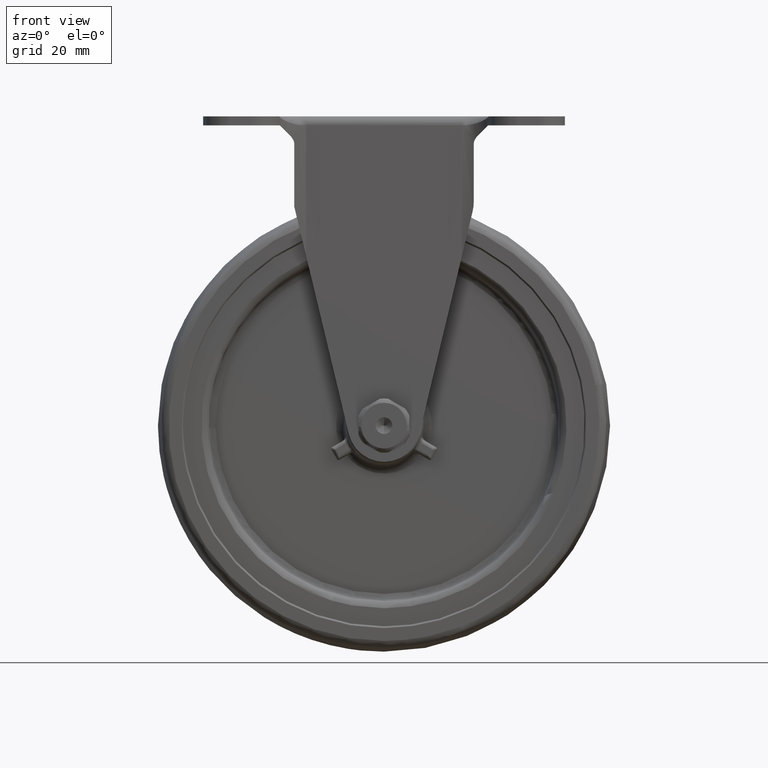
[diagram: clean part render]
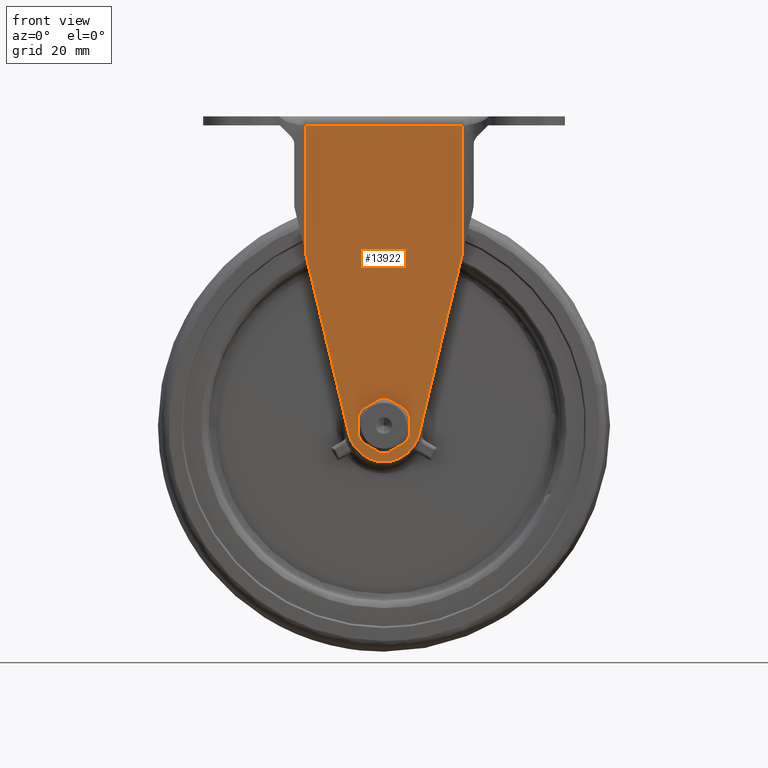
[diagram: same view with one face highlighted and labeled with its STEP entity id]
A machine part, front view. The second image highlights one B-rep face of the part: STEP entity #13922.
In plain terms, the highlighted face is a freeform B-spline surface patch.
Its self-contained STEP definition (entity closure, byte-faithful):
#10269=CARTESIAN_POINT('',(-4.0,-18.499980000000001,0.0));
#10270=VERTEX_POINT('',#10269);
#10271=CARTESIAN_POINT('',(-3.041623862398217,-18.499980000000001,-2.597792193322967));
#10272=VERTEX_POINT('',#10271);
#10273=CARTESIAN_POINT('',(-4.0,-18.499980000000001,0.0));
#10274=CARTESIAN_POINT('',(-4.000000000000001,-18.499979999999997,-1.475677908442645));
#10275=CARTESIAN_POINT('',(-3.041623862398218,-18.499980000000001,-2.597792193322967));
#10283=(BOUNDED_CURVE()B_SPLINE_CURVE(2,(#10273,#10274,#10275),.UNSPECIFIED.,.F.,.U.)B_SPLINE_CURVE_WITH_KNOTS((3,3),(0.0,0.113143161349596),.UNSPECIFIED.)CURVE()GEOMETRIC_REPRESENTATION_ITEM()RATIONAL_B_SPLINE_CURVE((1.0,0.867444541142348,0.854871031639104))REPRESENTATION_ITEM(''));
#10284=EDGE_CURVE('',#10270,#10272,#10283,.T.);
#10327=CARTESIAN_POINT('',(2.597787827637403,-18.499980000000001,-3.041627591035098));
#10328=VERTEX_POINT('',#10327);
#10334=CARTESIAN_POINT('',(4.0,-18.499980000000001,0.0));
#10335=VERTEX_POINT('',#10334);
#10336=CARTESIAN_POINT('',(2.597787827637403,-18.499979999999997,-3.041627591035098));
#10337=CARTESIAN_POINT('',(4.000000000000000,-18.499980000000004,-1.844028738418024));
#10338=CARTESIAN_POINT('',(4.0,-18.499980000000001,0.0));
#10346=(BOUNDED_CURVE()B_SPLINE_CURVE(2,(#10336,#10337,#10338),.UNSPECIFIED.,.F.,.U.)B_SPLINE_CURVE_WITH_KNOTS((3,3),(0.363142944443250,0.500000000000000),.UNSPECIFIED.)CURVE()GEOMETRIC_REPRESENTATION_ITEM()RATIONAL_B_SPLINE_CURVE((0.854871079848805,0.839661985922607,1.0))REPRESENTATION_ITEM(''));
#10347=EDGE_CURVE('',#10328,#10335,#10346,.T.);
#10349=CARTESIAN_POINT('',(4.0,-18.499980000000001,0.0));
#10350=CARTESIAN_POINT('',(4.000000000000000,-18.499980000000004,4.000000000000000));
#10351=CARTESIAN_POINT('',(0.0,-18.499980000000001,4.0));
#10352=CARTESIAN_POINT('',(-4.000000000000000,-18.499980000000004,4.000000000000000));
#10353=CARTESIAN_POINT('',(-4.0,-18.499980000000001,0.0));
#10361=(BOUNDED_CURVE()B_SPLINE_CURVE(2,(#10349,#10350,#10351,#10352,#10353),.UNSPECIFIED.,.F.,.U.)B_SPLINE_CURVE_WITH_KNOTS((3,2,3),(0.500000000000000,0.750000000000000,1.0),.UNSPECIFIED.)CURVE()GEOMETRIC_REPRESENTATION_ITEM()RATIONAL_B_SPLINE_CURVE((1.0,0.707106781186548,1.0,0.707106781186548,1.0))REPRESENTATION_ITEM(''));
#10362=EDGE_CURVE('',#10335,#10270,#10361,.T.);
#10385=CARTESIAN_POINT('',(-3.041623862398218,-18.499980000000001,-2.597792193322967));
#10386=CARTESIAN_POINT('',(-1.844025257705713,-18.499980000000001,-4.0));
#10387=CARTESIAN_POINT('',(0.0,-18.499980000000001,-4.0));
#10388=CARTESIAN_POINT('',(1.475674647120641,-18.499980000000001,-4.000000000000001));
#10389=CARTESIAN_POINT('',(2.597787827637403,-18.499979999999997,-3.041627591035098));
#10397=(BOUNDED_CURVE()B_SPLINE_CURVE(2,(#10385,#10386,#10387,#10388,#10389),.UNSPECIFIED.,.F.,.U.)B_SPLINE_CURVE_WITH_KNOTS((3,2,3),(0.113143161349596,0.250000000000000,0.363142944443250),.UNSPECIFIED.)CURVE()GEOMETRIC_REPRESENTATION_ITEM()RATIONAL_B_SPLINE_CURVE((0.854871031639104,0.839662240044200,1.0,0.867444795263940,0.854871079848805))REPRESENTATION_ITEM(''));
#10398=EDGE_CURVE('',#10272,#10328,#10397,.T.);
#11385=CARTESIAN_POINT('',(21.590029581121051,-18.499980000000001,83.0));
#11386=VERTEX_POINT('',#11385);
#11462=CARTESIAN_POINT('',(-21.590029999999999,-18.499980000000001,83.0));
#11463=VERTEX_POINT('',#11462);
#11477=CARTESIAN_POINT('',(21.590029581121051,-18.499980000000001,83.0));
#11478=CARTESIAN_POINT('',(-21.590029999999999,-18.499980000000001,83.0));
#11479=QUASI_UNIFORM_CURVE('',1,(#11477,#11478),.UNSPECIFIED.,.F.,.U.);
#11480=EDGE_CURVE('',#11386,#11463,#11479,.T.);
#12213=CARTESIAN_POINT('',(-21.590029999999999,-18.499980000000001,47.121603146489903));
#12214=VERTEX_POINT('',#12213);
#12259=CARTESIAN_POINT('',(-9.724018100333170,-18.499980000000001,-2.333117239733630));
#12260=VERTEX_POINT('',#12259);
#12266=CARTESIAN_POINT('',(-21.590029999999999,-18.499980000000001,47.121603146489903));
#12267=CARTESIAN_POINT('',(-9.724018100333170,-18.499980000000001,-2.333117239733630));
#12268=QUASI_UNIFORM_CURVE('',1,(#12266,#12267),.UNSPECIFIED.,.F.,.U.);
#12269=EDGE_CURVE('',#12214,#12260,#12268,.T.);
#12343=CARTESIAN_POINT('',(21.590029581121051,-18.499980000000001,47.121647717082702));
#12344=VERTEX_POINT('',#12343);
#12358=CARTESIAN_POINT('',(9.724006395502389,-18.499980000000001,-2.333117345066995));
#12359=VERTEX_POINT('',#12358);
#12360=CARTESIAN_POINT('',(9.724006395502389,-18.499980000000001,-2.333117345066995));
#12361=CARTESIAN_POINT('',(21.590029581121051,-18.499980000000001,47.121647717082702));
#12362=QUASI_UNIFORM_CURVE('',1,(#12360,#12361),.UNSPECIFIED.,.F.,.U.);
#12363=EDGE_CURVE('',#12359,#12344,#12362,.T.);
#12431=CARTESIAN_POINT('',(-9.724018100333172,-18.499980000000001,-2.333117239733632));
#12432=CARTESIAN_POINT('',(-7.884457777779585,-18.499980000000001,-9.999967918354237));
#12433=CARTESIAN_POINT('',(-0.000005893940182,-18.499980000000001,-9.999967961057587));
#12434=CARTESIAN_POINT('',(7.884445989899220,-18.499980000000001,-9.999968003760941));
#12435=CARTESIAN_POINT('',(9.724006395502389,-18.499980000000001,-2.333117345066995));
#12443=(BOUNDED_CURVE()B_SPLINE_CURVE(2,(#12431,#12432,#12433,#12434,#12435),.UNSPECIFIED.,.F.,.U.)B_SPLINE_CURVE_WITH_KNOTS((3,2,3),(0.0,0.500000000000000,1.0),.UNSPECIFIED.)CURVE()GEOMETRIC_REPRESENTATION_ITEM()RATIONAL_B_SPLINE_CURVE((1.0,0.785275408100328,1.0,0.785275408100328,1.0))REPRESENTATION_ITEM(''));
#12444=EDGE_CURVE('',#12260,#12359,#12443,.T.);
#13455=CARTESIAN_POINT('',(-21.590029999999999,-18.499980000000001,47.121603146489903));
#13456=CARTESIAN_POINT('',(-21.590029999999999,-18.499980000000001,83.0));
#13457=QUASI_UNIFORM_CURVE('',1,(#13455,#13456),.UNSPECIFIED.,.F.,.U.);
#13458=EDGE_CURVE('',#12214,#11463,#13457,.T.);
#13494=CARTESIAN_POINT('',(21.590029581121051,-18.499980000000001,47.121647717082702));
#13495=CARTESIAN_POINT('',(21.590029581121051,-18.499980000000001,83.0));
#13496=QUASI_UNIFORM_CURVE('',1,(#13494,#13495),.UNSPECIFIED.,.F.,.U.);
#13497=EDGE_CURVE('',#12344,#11386,#13496,.T.);
#13903=CARTESIAN_POINT('',(23.746872662819712,-18.499980000000001,-14.645316180459890));
#13904=CARTESIAN_POINT('',(-23.746875011997741,-18.499980000000001,-14.645316180459890));
#13905=CARTESIAN_POINT('',(23.746872662819712,-18.499980000000001,87.645350713856331));
#13906=CARTESIAN_POINT('',(-23.746875011997741,-18.499980000000001,87.645350713856331));
#13907=B_SPLINE_SURFACE_WITH_KNOTS('',1,1,((#13903,#13905),(#13904,#13906)),.UNSPECIFIED.,.F.,.F.,.U.,(2,2),(2,2),(0.0,47.493747674817442),(0.0,102.290666894316200),.UNSPECIFIED.);
#13908=ORIENTED_EDGE('',*,*,#13497,.T.);
#13909=ORIENTED_EDGE('',*,*,#11480,.T.);
#13910=ORIENTED_EDGE('',*,*,#13458,.F.);
#13911=ORIENTED_EDGE('',*,*,#12269,.T.);
#13912=ORIENTED_EDGE('',*,*,#12444,.T.);
#13913=ORIENTED_EDGE('',*,*,#12363,.T.);
#13914=EDGE_LOOP('',(#13908,#13909,#13910,#13911,#13912,#13913));
#13915=FACE_OUTER_BOUND('',#13914,.T.);
#13916=ORIENTED_EDGE('',*,*,#10362,.F.);
#13917=ORIENTED_EDGE('',*,*,#10347,.F.);
#13918=ORIENTED_EDGE('',*,*,#10398,.F.);
#13919=ORIENTED_EDGE('',*,*,#10284,.F.);
#13920=EDGE_LOOP('',(#13916,#13917,#13918,#13919));
#13921=FACE_BOUND('',#13920,.T.);
#13922=ADVANCED_FACE('',(#13915,#13921),#13907,.F.);